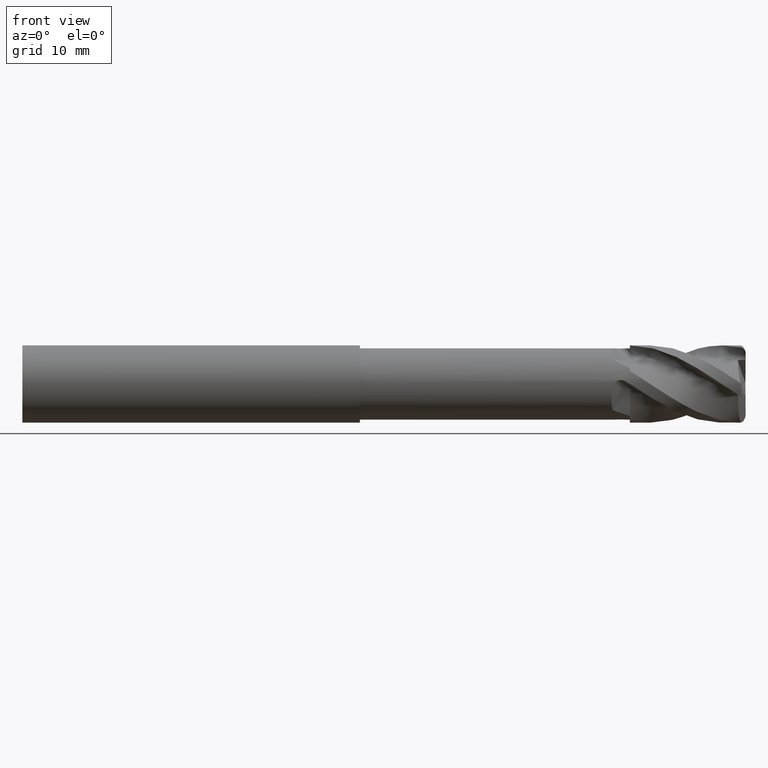
[diagram: clean part render]
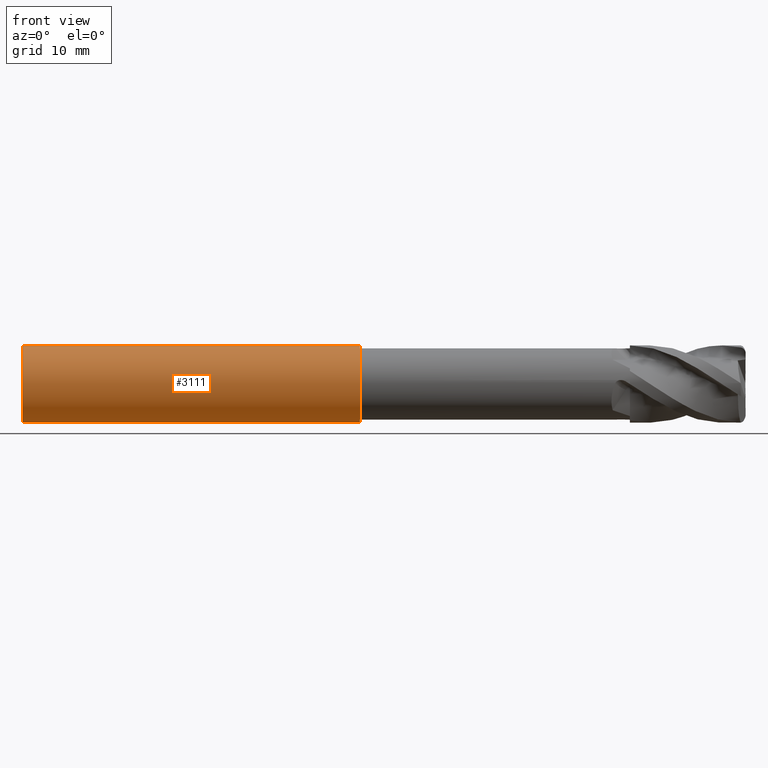
[diagram: same view with one face highlighted and labeled with its STEP entity id]
A machine part, front view. The second image highlights one B-rep face of the part: STEP entity #3111.
In plain terms, the highlighted cylindrical surface (partial cylindrical patch) has radius 4 mm, axis along (-1, -0, -0).
Its self-contained STEP definition (entity closure, byte-faithful):
#407 = CARTESIAN_POINT ( 'NONE',  ( -39.76065438357068200, 4.898587196589421700E-016, -4.000000000000007100 ) ) ;
#408 = DIRECTION ( 'NONE',  ( -1.000000000000000000, -0.0000000000000000000, -0.0000000000000000000 ) ) ;
#486 = CARTESIAN_POINT ( 'NONE',  ( -1.000000000000000900, 0.0000000000000000000, 0.0000000000000000000 ) ) ;
#487 = DIRECTION ( 'NONE',  ( -1.000000000000000000, -0.0000000000000000000, -0.0000000000000000000 ) ) ;
#488 = DIRECTION ( 'NONE',  ( 0.0000000000000000000, 0.0000000000000000000, 1.000000000000000000 ) ) ;
#2176 = EDGE_LOOP ( 'NONE', ( #4156, #4028, #4137, #4136 ) ) ;
#2270 = AXIS2_PLACEMENT_3D ( 'NONE', #4770, #4452, #4761 ) ;
#2290 = EDGE_CURVE ( 'NONE', #3378, #3142, #4064, .T. ) ;
#2299 = EDGE_CURVE ( 'NONE', #3151, #3142, #4171, .T. ) ;
#2315 = AXIS2_PLACEMENT_3D ( 'NONE', #486, #487, #488 ) ;
#2341 = AXIS2_PLACEMENT_3D ( 'NONE', #3620, #3589, #3585 ) ;
#2398 = EDGE_CURVE ( 'NONE', #3179, #3151, #4208, .T. ) ;
#2415 = EDGE_CURVE ( 'NONE', #3179, #3378, #4215, .T. ) ;
#3111 = ADVANCED_FACE ( 'NONE', ( #4284 ), #4286, .T. ) ;
#3142 = VERTEX_POINT ( 'NONE', #4840 ) ;
#3151 = VERTEX_POINT ( 'NONE', #4826 ) ;
#3179 = VERTEX_POINT ( 'NONE', #4825 ) ;
#3378 = VERTEX_POINT ( 'NONE', #4918 ) ;
#3585 = DIRECTION ( 'NONE',  ( 0.0000000000000000000, 0.0000000000000000000, 1.000000000000000000 ) ) ;
#3589 = DIRECTION ( 'NONE',  ( -1.000000000000000000, -0.0000000000000000000, -0.0000000000000000000 ) ) ;
#3620 = CARTESIAN_POINT ( 'NONE',  ( -36.00000000000000000, 0.0000000000000000000, 0.0000000000000000000 ) ) ;
#3641 = CARTESIAN_POINT ( 'NONE',  ( -39.76065438357068200, 0.0000000000000000000, 4.000000000000007100 ) ) ;
#3642 = DIRECTION ( 'NONE',  ( -1.000000000000000000, -0.0000000000000000000, -0.0000000000000000000 ) ) ;
#3975 = VECTOR ( 'NONE', #3642, 1000.000000000000000 ) ;
#4028 = ORIENTED_EDGE ( 'NONE', *, *, #2415, .T. ) ;
#4064 = LINE ( 'NONE', #3641, #3975 ) ;
#4136 = ORIENTED_EDGE ( 'NONE', *, *, #2299, .F. ) ;
#4137 = ORIENTED_EDGE ( 'NONE', *, *, #2290, .T. ) ;
#4156 = ORIENTED_EDGE ( 'NONE', *, *, #2398, .F. ) ;
#4171 = CIRCLE ( 'NONE', #2341, 4.000000000000005300 ) ;
#4208 = LINE ( 'NONE', #407, #4209 ) ;
#4209 = VECTOR ( 'NONE', #408, 1000.000000000000000 ) ;
#4215 = CIRCLE ( 'NONE', #2315, 4.000000000000009800 ) ;
#4284 = FACE_OUTER_BOUND ( 'NONE', #2176, .T. ) ;
#4286 = CYLINDRICAL_SURFACE ( 'NONE', #2270, 4.000000000000007100 ) ;
#4452 = DIRECTION ( 'NONE',  ( -1.000000000000000000, -0.0000000000000000000, -0.0000000000000000000 ) ) ;
#4761 = DIRECTION ( 'NONE',  ( 0.0000000000000000000, 0.0000000000000000000, 1.000000000000000000 ) ) ;
#4770 = CARTESIAN_POINT ( 'NONE',  ( -39.76065438357068200, 0.0000000000000000000, 0.0000000000000000000 ) ) ;
#4825 = CARTESIAN_POINT ( 'NONE',  ( -1.000000000000000900, 4.898587196589423700E-016, -4.000000000000009800 ) ) ;
#4826 = CARTESIAN_POINT ( 'NONE',  ( -36.00000000000000000, 4.898587196589420700E-016, -4.000000000000005300 ) ) ;
#4840 = CARTESIAN_POINT ( 'NONE',  ( -36.00000000000000000, 0.0000000000000000000, 4.000000000000005300 ) ) ;
#4918 = CARTESIAN_POINT ( 'NONE',  ( -1.000000000000000900, 0.0000000000000000000, 4.000000000000009800 ) ) ;